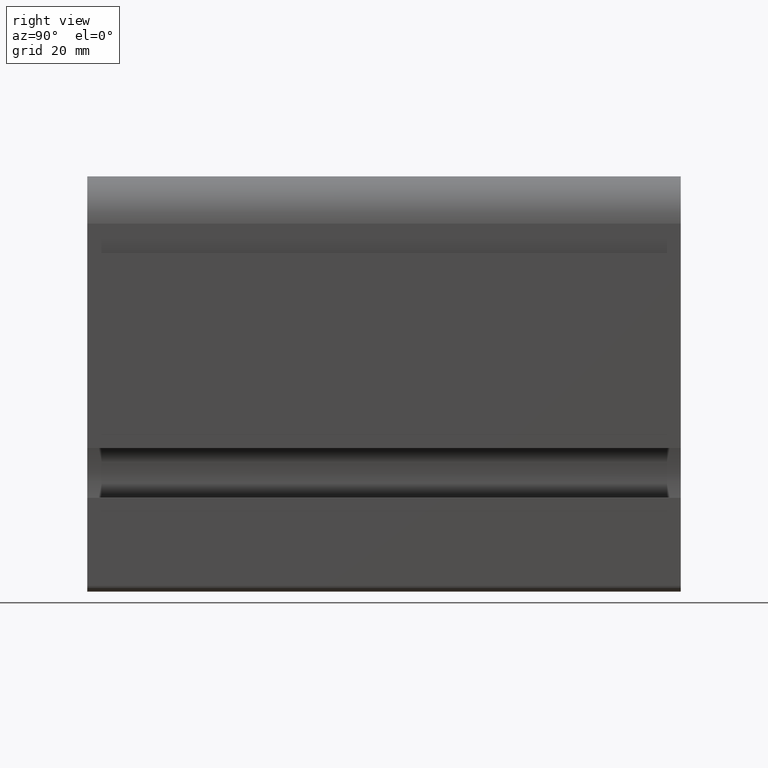
[diagram: clean part render]
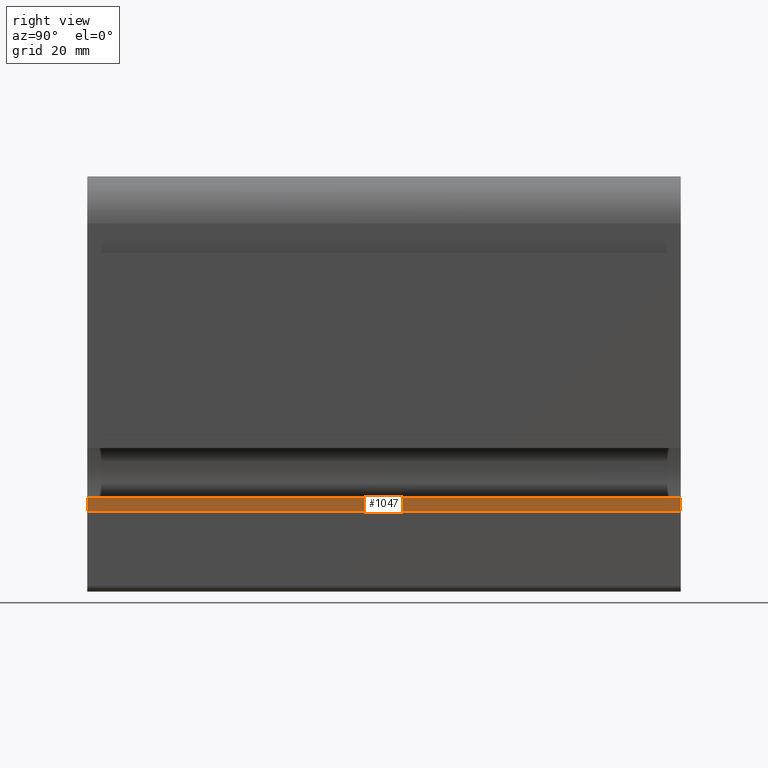
[diagram: same view with one face highlighted and labeled with its STEP entity id]
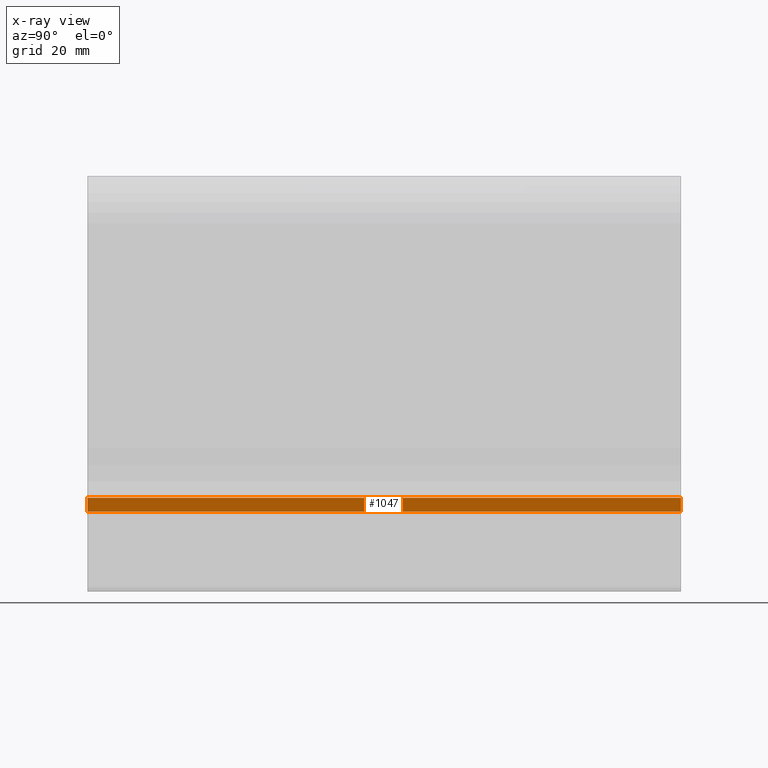
[diagram: x-ray of the same camera — body ghosted, the highlighted face saturated]
A machine part, right view. The second image highlights one B-rep face of the part: STEP entity #1047.
The next image is the same camera in x-ray: the body ghosted, the highlighted face saturated — about 0% of this face is hidden behind the body in this view.
In plain terms, the highlighted planar face has unit normal (1, 0, 0).
Its self-contained STEP definition (entity closure, byte-faithful):
#128=FACE_OUTER_BOUND('',#181,.T.);
#181=EDGE_LOOP('',(#819,#820,#821,#822));
#278=LINE('',#1709,#385);
#279=LINE('',#1712,#386);
#280=LINE('',#1714,#387);
#281=LINE('',#1715,#388);
#385=VECTOR('',#1401,10.);
#386=VECTOR('',#1404,10.);
#387=VECTOR('',#1405,10.);
#388=VECTOR('',#1406,10.);
#492=VERTEX_POINT('',#1705);
#493=VERTEX_POINT('',#1707);
#494=VERTEX_POINT('',#1711);
#495=VERTEX_POINT('',#1713);
#630=EDGE_CURVE('',#492,#493,#278,.T.);
#631=EDGE_CURVE('',#492,#494,#279,.T.);
#632=EDGE_CURVE('',#495,#493,#280,.T.);
#633=EDGE_CURVE('',#494,#495,#281,.T.);
#819=ORIENTED_EDGE('',*,*,#631,.F.);
#820=ORIENTED_EDGE('',*,*,#630,.T.);
#821=ORIENTED_EDGE('',*,*,#632,.F.);
#822=ORIENTED_EDGE('',*,*,#633,.F.);
#999=PLANE('',#1156);
#1047=ADVANCED_FACE('',(#128),#999,.T.);
#1156=AXIS2_PLACEMENT_3D('',#1710,#1402,#1403);
#1401=DIRECTION('',(0.,1.,0.));
#1402=DIRECTION('center_axis',(1.,0.,9.05073117900934E-16));
#1403=DIRECTION('ref_axis',(9.05073117900934E-16,0.,-1.));
#1404=DIRECTION('',(-9.05073117900934E-16,0.,1.));
#1405=DIRECTION('',(9.05073117900934E-16,0.,-1.));
#1406=DIRECTION('',(0.,1.,0.));
#1705=CARTESIAN_POINT('',(-0.800000000000006,0.,-43.5));
#1707=CARTESIAN_POINT('',(-0.800000000000006,100.,-43.5));
#1709=CARTESIAN_POINT('',(-0.800000000000006,0.,-43.5));
#1710=CARTESIAN_POINT('Origin',(-0.800000000000008,0.,-41.2));
#1711=CARTESIAN_POINT('',(-0.800000000000008,0.,-41.2));
#1712=CARTESIAN_POINT('',(-0.800000000000006,0.,-43.5));
#1713=CARTESIAN_POINT('',(-0.800000000000008,100.,-41.2));
#1714=CARTESIAN_POINT('',(-0.800000000000006,100.,-43.5));
#1715=CARTESIAN_POINT('',(-0.800000000000008,0.,-41.2));